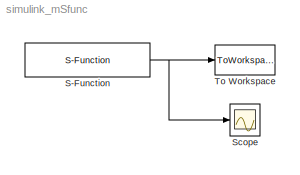
MODEL simulink_mSfunc
KIND model
BLOCK [S-Function] S-Function
  EnableBusSupport = off
  FunctionName = sfun_CSTR
  Parameters = x0, par
  Ports = [1, 1]
  SID = 1
BLOCK [Scope] Scope
  DataFormat = StructureWithTime
  Floating = off
  LegendLocations = 0.84594      0.8001     0.12228     0.14574
  NumInputPorts = 1
  Ports = [1]
  SID = 3
  SampleTime = 0
  ShowLegends = on
  YMax = 6
  YMin = 0
BLOCK [ToWorkspace] To Workspace
  MaxDataPoints = inf
  Ports = [1]
  SID = 2
  SampleTime = -1
  VariableName = y
NET S-Function:1 -> Scope:1, To Workspace:1
note: NET lines group one-source signal fan-out (src -> all destinations, sorted); 1:1 wires keep LINE
